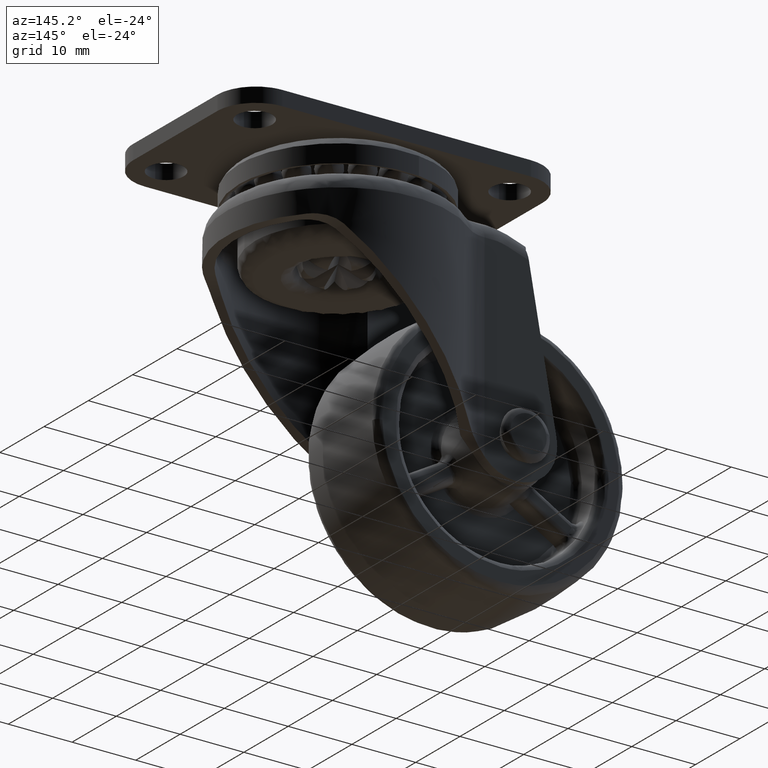
[diagram: clean part render]
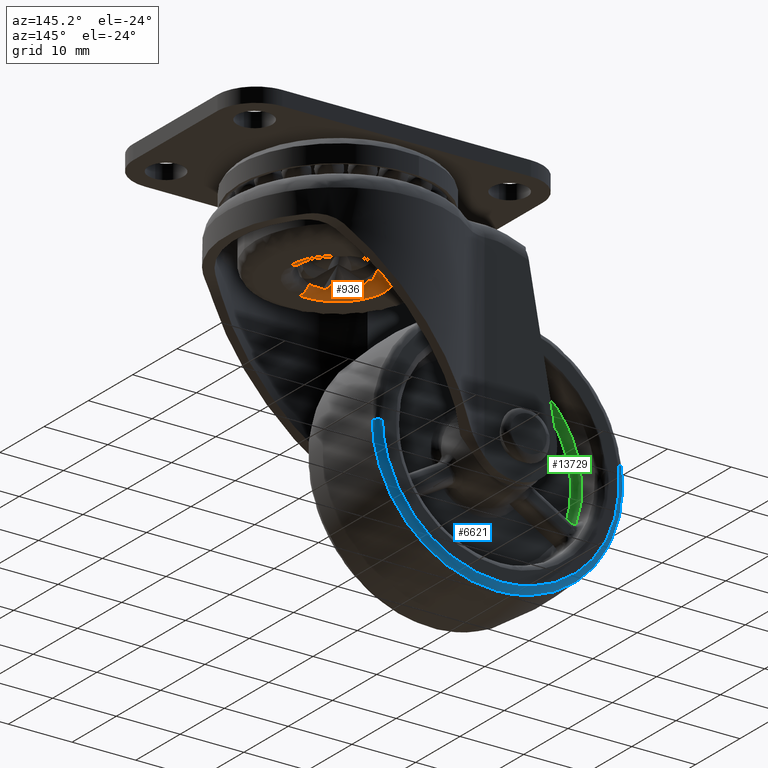
[diagram: same view with three faces highlighted in distinct colors, each labeled with its STEP entity id]
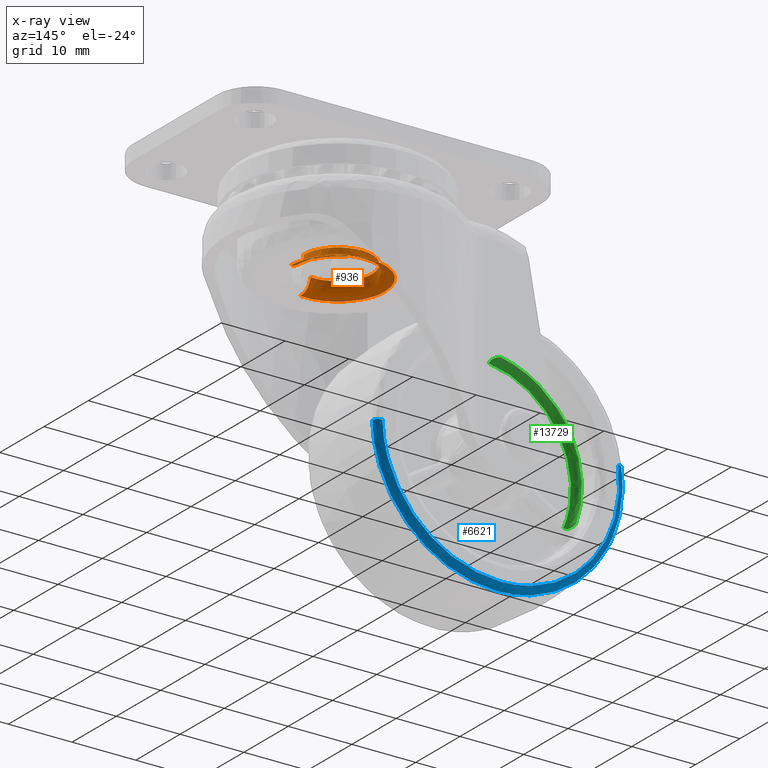
[diagram: x-ray of the same camera — body ghosted, the three highlighted faces saturated]
A machine part, auxiliary view with three faces highlighted in distinct colors.
The next image is the same camera in x-ray (body ghosted, the three faces saturated) — at least one of them is partly hidden behind the body in this view.
Their STEP definitions:

[orange] entity #936 — the highlighted face is a freeform B-spline surface patch.
#290=CARTESIAN_POINT('',(25.023475580085329,1.886830554548066,24.022790396477710));
#291=VERTEX_POINT('',#290);
#292=CARTESIAN_POINT('',(25.366137945048528,1.135119E-016,24.022790396422369));
#293=VERTEX_POINT('',#292);
#294=CARTESIAN_POINT('',(25.023475580085325,1.886830554548066,24.022790396477717));
#295=CARTESIAN_POINT('',(25.366137945048518,0.974530285478672,24.022790396450958));
#296=CARTESIAN_POINT('',(25.366137945048528,1.135119E-016,24.022790396422369));
#304=(BOUNDED_CURVE()B_SPLINE_CURVE(2,(#294,#295,#296),.UNSPECIFIED.,.F.,.U.)B_SPLINE_CURVE_WITH_KNOTS((3,3),(0.440284170898641,0.500000000000000),.UNSPECIFIED.)CURVE()GEOMETRIC_REPRESENTATION_ITEM()RATIONAL_B_SPLINE_CURVE((0.893499554635437,0.930038554401556,1.0))REPRESENTATION_ITEM(''));
#305=EDGE_CURVE('',#291,#293,#304,.T.);
#307=CARTESIAN_POINT('',(20.619596982410702,-5.330247276128903,24.022790396276591));
#308=VERTEX_POINT('',#307);
#322=CARTESIAN_POINT('',(14.633862054950979,0.0,24.022790396579751));
#323=VERTEX_POINT('',#322);
#324=CARTESIAN_POINT('',(20.619596982410698,-5.330247276128903,24.022790396276591));
#325=CARTESIAN_POINT('',(20.310837989644643,-5.366137945048771,24.022790396579754));
#326=CARTESIAN_POINT('',(19.999999999999751,-5.366137945048770,24.022790396579751));
#327=CARTESIAN_POINT('',(14.633862054950976,-5.366137945048770,24.022790396579747));
#328=CARTESIAN_POINT('',(14.633862054950979,0.0,24.022790396579751));
#336=(BOUNDED_CURVE()B_SPLINE_CURVE(2,(#324,#325,#326,#327,#328),.UNSPECIFIED.,.F.,.U.)B_SPLINE_CURVE_WITH_KNOTS((3,2,3),(0.729999999992186,0.750000000000000,1.0),.UNSPECIFIED.)CURVE()GEOMETRIC_REPRESENTATION_ITEM()RATIONAL_B_SPLINE_CURVE((0.956886118175279,0.976568542485769,1.0,0.707106781186547,1.0))REPRESENTATION_ITEM(''));
#337=EDGE_CURVE('',#308,#323,#336,.T.);
#339=CARTESIAN_POINT('',(19.672405115416019,5.356129016079318,24.022790396579751));
#340=VERTEX_POINT('',#339);
#341=CARTESIAN_POINT('',(14.633862054950979,0.0,24.022790396579751));
#342=CARTESIAN_POINT('',(14.633862054950988,5.047958520579077,24.022790396579758));
#343=CARTESIAN_POINT('',(19.672405115416019,5.356129016079319,24.022790396579751));
#351=(BOUNDED_CURVE()B_SPLINE_CURVE(2,(#341,#342,#343),.UNSPECIFIED.,.F.,.U.)B_SPLINE_CURVE_WITH_KNOTS((3,3),(0.0,0.239332962235788),.UNSPECIFIED.)CURVE()GEOMETRIC_REPRESENTATION_ITEM()RATIONAL_B_SPLINE_CURVE((1.0,0.719603993290407,0.976072041659955))REPRESENTATION_ITEM(''));
#352=EDGE_CURVE('',#323,#340,#351,.T.);
#430=CARTESIAN_POINT('',(19.672405115416012,5.356129016079318,24.022790396579751));
#431=CARTESIAN_POINT('',(19.836049657440896,5.366137945048769,24.022790396579754));
#432=CARTESIAN_POINT('',(19.999999999999751,5.366137945048770,24.022790396579751));
#433=CARTESIAN_POINT('',(23.716638632553721,5.366137945048770,24.022790396579754));
#434=CARTESIAN_POINT('',(25.023475580085329,1.886830554548065,24.022790396477710));
#442=(BOUNDED_CURVE()B_SPLINE_CURVE(2,(#430,#431,#432,#433,#434),.UNSPECIFIED.,.F.,.U.)B_SPLINE_CURVE_WITH_KNOTS((3,2,3),(0.239332962235788,0.250000000000000,0.440284170898641),.UNSPECIFIED.)CURVE()GEOMETRIC_REPRESENTATION_ITEM()RATIONAL_B_SPLINE_CURVE((0.976072041659955,0.987502787896141,1.0,0.777068226784991,0.893499554635438))REPRESENTATION_ITEM(''));
#443=EDGE_CURVE('',#340,#291,#442,.T.);
#833=CARTESIAN_POINT('',(20.866539692576890,-7.454644727187602,22.027605738241380));
#834=CARTESIAN_POINT('',(20.434723637817584,-7.504839708308071,22.027605738241398));
#835=CARTESIAN_POINT('',(19.999999999999748,-7.504839708308070,22.027605738241384));
#836=CARTESIAN_POINT('',(12.495160291691681,-7.504839708308071,22.027605738241391));
#837=CARTESIAN_POINT('',(12.495160291691684,-1.378571E-015,22.027605738241384));
#838=CARTESIAN_POINT('',(12.495160291691681,7.504839708308067,22.027605738241391));
#839=CARTESIAN_POINT('',(19.999999999999748,7.504839708308070,22.027605738241384));
#840=CARTESIAN_POINT('',(27.504839708307816,7.504839708308071,22.027605738241391));
#841=CARTESIAN_POINT('',(27.504839708307824,2.297619E-015,22.027605738241384));
#842=CARTESIAN_POINT('',(20.601644104712594,-5.175807976553631,21.868118267709576));
#843=CARTESIAN_POINT('',(20.301831429203595,-5.210658676107265,21.868118267709583));
#844=CARTESIAN_POINT('',(19.999999999999741,-5.210658676107263,21.868118267709583));
#845=CARTESIAN_POINT('',(14.789341323892486,-5.210658676107266,21.868118267709580));
#846=CARTESIAN_POINT('',(14.789341323892483,-9.571509E-016,21.868118267709583));
#847=CARTESIAN_POINT('',(14.789341323892486,5.210658676107263,21.868118267709580));
#848=CARTESIAN_POINT('',(19.999999999999741,5.210658676107263,21.868118267709583));
#849=CARTESIAN_POINT('',(25.210658676107009,5.210658676107266,21.868118267709580));
#850=CARTESIAN_POINT('',(25.210658676107020,1.595251E-015,21.868118267709583));
#851=CARTESIAN_POINT('',(20.620158394718374,-5.335082220482086,24.162239406196647));
#852=CARTESIAN_POINT('',(20.311119635585683,-5.371005374587149,24.162239406196640));
#853=CARTESIAN_POINT('',(19.999999999999751,-5.371005374587148,24.162239406196647));
#854=CARTESIAN_POINT('',(14.628994625412602,-5.371005374587150,24.162239406196655));
#855=CARTESIAN_POINT('',(14.628994625412599,-9.866051E-016,24.162239406196647));
#856=CARTESIAN_POINT('',(14.628994625412602,5.371005374587148,24.162239406196655));
#857=CARTESIAN_POINT('',(19.999999999999751,5.371005374587148,24.162239406196647));
#858=CARTESIAN_POINT('',(25.371005374586911,5.371005374587152,24.162239406196655));
#859=CARTESIAN_POINT('',(25.371005374586904,1.644342E-015,24.162239406196647));
#867=(BOUNDED_SURFACE()B_SPLINE_SURFACE(2,2,((#833,#842,#851),(#834,#843,#852),(#835,#844,#853),(#836,#845,#854),(#837,#846,#855),(#838,#847,#856),(#839,#848,#857),(#840,#849,#858),(#841,#850,#859)),.UNSPECIFIED.,.F.,.F.,.U.)B_SPLINE_SURFACE_WITH_KNOTS((3,2,2,2,3),(3,3),(0.0,0.994753096326167,13.429178658795550,25.863604221264939,38.298029783734322),(0.0,3.644742170341143),.UNSPECIFIED.)GEOMETRIC_REPRESENTATION_ITEM()RATIONAL_B_SPLINE_SURFACE(((0.870831767469275,0.569876264854730,0.866008099449110),(0.888744104281515,0.581598179441108,0.883821217136054),(0.910068310898686,0.595552837128091,0.905027305768378),(0.643515473979449,0.421119449688160,0.639950945067811),(0.910068310898686,0.595552837128091,0.905027305768378),(0.643515473979449,0.421119449688160,0.639950945067811),(0.910068310898686,0.595552837128091,0.905027305768378),(0.643515473979449,0.421119449688160,0.639950945067811),(0.910068310898686,0.595552837128091,0.905027305768378)))REPRESENTATION_ITEM('')SURFACE());
#868=CARTESIAN_POINT('',(20.850525440930241,-7.316870553685574,22.022790396579751));
#869=VERTEX_POINT('',#868);
#870=CARTESIAN_POINT('',(12.633862054950960,0.0,22.022790396579751));
#871=VERTEX_POINT('',#870);
#872=CARTESIAN_POINT('',(20.850525440930234,-7.316870553685575,22.022790396579754));
#873=CARTESIAN_POINT('',(20.426689647707807,-7.366137945048791,22.022790396579747));
#874=CARTESIAN_POINT('',(19.999999999999751,-7.366137945048791,22.022790396579751));
#875=CARTESIAN_POINT('',(12.633862054950962,-7.366137945048791,22.022790396579754));
#876=CARTESIAN_POINT('',(12.633862054950960,0.0,22.022790396579751));
#884=(BOUNDED_CURVE()B_SPLINE_CURVE(2,(#872,#873,#874,#875,#876),.UNSPECIFIED.,.F.,.U.)B_SPLINE_CURVE_WITH_KNOTS((3,2,3),(0.730000000000376,0.750000000000000,1.0),.UNSPECIFIED.)CURVE()GEOMETRIC_REPRESENTATION_ITEM()RATIONAL_B_SPLINE_CURVE((0.956886118191401,0.976568542495365,1.0,0.707106781186547,1.0))REPRESENTATION_ITEM(''));
#885=EDGE_CURVE('',#869,#871,#884,.T.);
#886=ORIENTED_EDGE('',*,*,#885,.T.);
#887=CARTESIAN_POINT('',(27.366137944170479,4.093661E-016,22.022790396579751));
#888=VERTEX_POINT('',#887);
#889=CARTESIAN_POINT('',(12.633862054950960,0.0,22.022790396579751));
#890=CARTESIAN_POINT('',(12.633862054950962,7.366137945048791,22.022790396579754));
#891=CARTESIAN_POINT('',(19.999999999999751,7.366137945048791,22.022790396579751));
#892=CARTESIAN_POINT('',(27.366137945048536,7.366137945048791,22.022790396579754));
#893=CARTESIAN_POINT('',(27.366137944170479,4.093661E-016,22.022790396579751));
#901=(BOUNDED_CURVE()B_SPLINE_CURVE(2,(#889,#890,#891,#892,#893),.UNSPECIFIED.,.F.,.U.)B_SPLINE_CURVE_WITH_KNOTS((3,2,3),(0.0,0.250000000000000,0.500000000000000),.UNSPECIFIED.)CURVE()GEOMETRIC_REPRESENTATION_ITEM()RATIONAL_B_SPLINE_CURVE((1.0,0.707106781186547,1.0,0.707106781186547,1.0))REPRESENTATION_ITEM(''));
#902=EDGE_CURVE('',#871,#888,#901,.T.);
#903=ORIENTED_EDGE('',*,*,#902,.T.);
#904=CARTESIAN_POINT('',(27.366137944170472,4.093661E-016,22.022790396579744));
#905=CARTESIAN_POINT('',(25.366137945678052,5.304852E-016,22.022790398335889));
#906=CARTESIAN_POINT('',(25.366137945048521,1.135119E-016,24.022790396422376));
#914=(BOUNDED_CURVE()B_SPLINE_CURVE(2,(#904,#905,#906),.UNSPECIFIED.,.F.,.U.)B_SPLINE_CURVE_WITH_KNOTS((3,3),(-1.726807298616677,-0.285995334364859),.UNSPECIFIED.)CURVE()GEOMETRIC_REPRESENTATION_ITEM()RATIONAL_B_SPLINE_CURVE((0.882788775895100,0.622603437956155,0.878205638940987))REPRESENTATION_ITEM(''));
#915=EDGE_CURVE('',#888,#293,#914,.T.);
#916=ORIENTED_EDGE('',*,*,#915,.T.);
#917=ORIENTED_EDGE('',*,*,#305,.F.);
#918=ORIENTED_EDGE('',*,*,#443,.F.);
#919=ORIENTED_EDGE('',*,*,#352,.F.);
#920=ORIENTED_EDGE('',*,*,#337,.F.);
#921=CARTESIAN_POINT('',(20.850525440930234,-7.316870553685575,22.022790396579751));
#922=CARTESIAN_POINT('',(20.619596982357589,-5.330247276745491,22.022790396637660));
#923=CARTESIAN_POINT('',(20.619596982410709,-5.330247276128903,24.022790396276598));
#931=(BOUNDED_CURVE()B_SPLINE_CURVE(2,(#921,#922,#923),.UNSPECIFIED.,.F.,.U.)B_SPLINE_CURVE_WITH_KNOTS((3,3),(-1.726807299484016,-0.285995334353078),.UNSPECIFIED.)CURVE()GEOMETRIC_REPRESENTATION_ITEM()RATIONAL_B_SPLINE_CURVE((0.844728325248293,0.595760586768756,0.840342784823389))REPRESENTATION_ITEM(''));
#932=EDGE_CURVE('',#869,#308,#931,.T.);
#933=ORIENTED_EDGE('',*,*,#932,.F.);
#934=EDGE_LOOP('',(#886,#903,#916,#917,#918,#919,#920,#933));
#935=FACE_OUTER_BOUND('',#934,.T.);
#936=ADVANCED_FACE('',(#935),#867,.T.);

[blue] entity #6621 — the highlighted face is a freeform B-spline surface patch.
#6416=CARTESIAN_POINT('',(18.578567727683190,7.999999999999970,-0.418232099378398));
#6417=VERTEX_POINT('',#6416);
#6435=CARTESIAN_POINT('',(-18.406016740991809,7.999999999999982,2.560594861546395));
#6436=VERTEX_POINT('',#6435);
#6450=CARTESIAN_POINT('',(-19.389481643099138,7.118649055468191,2.697411774477859));
#6451=VERTEX_POINT('',#6450);
#6452=CARTESIAN_POINT('',(-18.406016740991806,7.999999999999982,2.560594861546395));
#6453=CARTESIAN_POINT('',(-19.285171209657033,8.000000235201663,2.682900391615570));
#6454=CARTESIAN_POINT('',(-19.389481643099145,7.118649055468191,2.697411774477859));
#6462=(BOUNDED_CURVE()B_SPLINE_CURVE(2,(#6452,#6453,#6454),.UNSPECIFIED.,.F.,.U.)B_SPLINE_CURVE_WITH_KNOTS((3,3),(-1.707209732716261,-0.285579518921736),.UNSPECIFIED.)CURVE()GEOMETRIC_REPRESENTATION_ITEM()RATIONAL_B_SPLINE_CURVE((0.888990191686358,0.665708706420451,0.891266781684579))REPRESENTATION_ITEM(''));
#6463=EDGE_CURVE('',#6436,#6451,#6462,.T.);
#6480=CARTESIAN_POINT('',(19.571252960442209,7.118644011443535,-0.440578968768423));
#6481=VERTEX_POINT('',#6480);
#6497=CARTESIAN_POINT('',(18.578567727683190,7.999999999999970,-0.418232099378398));
#6498=CARTESIAN_POINT('',(19.465968576374564,8.000000302722485,-0.438208855546411));
#6499=CARTESIAN_POINT('',(19.571252960442212,7.118644011443535,-0.440578968768423));
#6507=(BOUNDED_CURVE()B_SPLINE_CURVE(2,(#6497,#6498,#6499),.UNSPECIFIED.,.F.,.U.)B_SPLINE_CURVE_WITH_KNOTS((3,3),(-1.707209814063338,-0.285574072680498),.UNSPECIFIED.)CURVE()GEOMETRIC_REPRESENTATION_ITEM()RATIONAL_B_SPLINE_CURVE((0.850662398083423,0.637006589073594,0.852842464712864))REPRESENTATION_ITEM(''));
#6508=EDGE_CURVE('',#6417,#6481,#6507,.T.);
#6513=CARTESIAN_POINT('',(-18.341132033231130,7.997851920142664,2.551568237568361));
#6514=CARTESIAN_POINT('',(-20.892700270799477,7.997851920142664,-15.789563795662758));
#6515=CARTESIAN_POINT('',(-2.551568237568362,7.997851920142664,-18.341132033231130));
#6516=CARTESIAN_POINT('',(15.789563795662758,7.997851920142664,-20.892700270799494));
#6517=CARTESIAN_POINT('',(18.341132033231130,7.997851920142664,-2.551568237568362));
#6518=CARTESIAN_POINT('',(18.488933738892079,7.997851920142664,-1.489142957949818));
#6519=CARTESIAN_POINT('',(18.513074777228642,7.997851920142665,-0.416757752327853));
#6520=CARTESIAN_POINT('',(-19.341412646758812,8.064153678646852,2.690724546868590));
#6521=CARTESIAN_POINT('',(-22.032137193627399,8.064153678646852,-16.650688099890221));
#6522=CARTESIAN_POINT('',(-2.690724546868590,8.064153678646852,-19.341412646758812));
#6523=CARTESIAN_POINT('',(16.650688099890221,8.064153678646852,-22.032137193627399));
#6524=CARTESIAN_POINT('',(19.341412646758812,8.064153678646852,-2.690724546868590));
#6525=CARTESIAN_POINT('',(19.497275097010181,8.064153678646854,-1.570357183380923));
#6526=CARTESIAN_POINT('',(19.522732728706131,8.064153678646854,-0.439486703814360));
#6527=CARTESIAN_POINT('',(-19.395059125371009,7.053516224315573,2.698187698577887));
#6528=CARTESIAN_POINT('',(-22.093246823948881,7.053516224315576,-16.696871426793120));
#6529=CARTESIAN_POINT('',(-2.698187698577888,7.053516224315573,-19.395059125371009));
#6530=CARTESIAN_POINT('',(16.696871426793120,7.053516224315576,-22.093246823948881));
#6531=CARTESIAN_POINT('',(19.395059125371009,7.053516224315573,-2.698187698577888));
#6532=CARTESIAN_POINT('',(19.551353884872821,7.053516224315573,-1.574712818338427));
#6533=CARTESIAN_POINT('',(19.576882127351915,7.053516224315574,-0.440705689960156));
#6541=(BOUNDED_SURFACE()B_SPLINE_SURFACE(2,2,((#6513,#6520,#6527),(#6514,#6521,#6528),(#6515,#6522,#6529),(#6516,#6523,#6530),(#6517,#6524,#6531),(#6518,#6525,#6532),(#6519,#6526,#6533)),.UNSPECIFIED.,.F.,.F.,.U.)B_SPLINE_SURFACE_WITH_KNOTS((3,2,2,3),(3,3),(0.0,32.444258097607978,64.888516195215956,67.484056843024604),(0.0,1.670947392178376),.UNSPECIFIED.)GEOMETRIC_REPRESENTATION_ITEM()RATIONAL_B_SPLINE_SURFACE(((0.912416213366537,0.642168130809258,0.914921926736441),(0.645175691736030,0.454081439957116,0.646947498651599),(0.912416213366537,0.642168130809258,0.914921926736441),(0.645175691736030,0.454081439957116,0.646947498651599),(0.912416213366537,0.642168130809258,0.914921926736441),(0.891036971636096,0.627121195541086,0.893483972489653),(0.873078408582526,0.614481769915822,0.875476090922352)))REPRESENTATION_ITEM('')SURFACE());
#6542=CARTESIAN_POINT('',(0.0,8.0,-18.583274650934250));
#6543=VERTEX_POINT('',#6542);
#6544=CARTESIAN_POINT('',(0.0,8.0,-18.583274650934250));
#6545=CARTESIAN_POINT('',(18.169644711128836,8.0,-18.583274650934250));
#6546=CARTESIAN_POINT('',(18.578567727683190,7.999999999999970,-0.418232099378398));
#6554=(BOUNDED_CURVE()B_SPLINE_CURVE(2,(#6544,#6545,#6546),.UNSPECIFIED.,.F.,.U.)B_SPLINE_CURVE_WITH_KNOTS((3,3),(0.0,0.246039451966748),.UNSPECIFIED.)CURVE()GEOMETRIC_REPRESENTATION_ITEM()RATIONAL_B_SPLINE_CURVE((1.0,0.711746851833445,0.990866876487602))REPRESENTATION_ITEM(''));
#6555=EDGE_CURVE('',#6543,#6417,#6554,.T.);
#6556=ORIENTED_EDGE('',*,*,#6555,.T.);
#6557=ORIENTED_EDGE('',*,*,#6508,.T.);
#6558=CARTESIAN_POINT('',(0.0,7.118643955602270,-19.576210925447150));
#6559=VERTEX_POINT('',#6558);
#6560=CARTESIAN_POINT('',(0.0,7.118643955602270,-19.576210925447150));
#6561=CARTESIAN_POINT('',(19.140480027959573,7.118643955602270,-19.576210925447153));
#6562=CARTESIAN_POINT('',(19.571252960442202,7.118644011443535,-0.440578968768423));
#6570=(BOUNDED_CURVE()B_SPLINE_CURVE(2,(#6560,#6561,#6562),.UNSPECIFIED.,.F.,.U.)B_SPLINE_CURVE_WITH_KNOTS((3,3),(0.0,0.246039451969112),.UNSPECIFIED.)CURVE()GEOMETRIC_REPRESENTATION_ITEM()RATIONAL_B_SPLINE_CURVE((1.0,0.711746851830676,0.990866876492965))REPRESENTATION_ITEM(''));
#6571=EDGE_CURVE('',#6559,#6481,#6570,.T.);
#6572=ORIENTED_EDGE('',*,*,#6571,.F.);
#6573=CARTESIAN_POINT('',(-19.445279401510842,7.118649067782592,2.260336098562421));
#6574=VERTEX_POINT('',#6573);
#6575=CARTESIAN_POINT('',(-19.445279401510842,7.118649067782592,2.260336098562421));
#6576=CARTESIAN_POINT('',(-19.576210334330465,7.118648935933976,1.133960129880808));
#6577=CARTESIAN_POINT('',(-19.576210351904042,7.118648787871385,-0.000000066669152));
#6578=CARTESIAN_POINT('',(-19.576210655286964,7.118646231781224,-19.576210956850808));
#6579=CARTESIAN_POINT('',(0.0,7.118643955602270,-19.576210925447150));
#6587=(BOUNDED_CURVE()B_SPLINE_CURVE(2,(#6575,#6576,#6577,#6578,#6579),.UNSPECIFIED.,.F.,.U.)B_SPLINE_CURVE_WITH_KNOTS((3,2,3),(0.730000138650092,0.750000000000000,1.0),.UNSPECIFIED.)CURVE()GEOMETRIC_REPRESENTATION_ITEM()RATIONAL_B_SPLINE_CURVE((0.956886391087834,0.976568704933611,1.0,0.707106781186548,1.0))REPRESENTATION_ITEM(''));
#6588=EDGE_CURVE('',#6574,#6559,#6587,.T.);
#6589=ORIENTED_EDGE('',*,*,#6588,.F.);
#6590=CARTESIAN_POINT('',(-19.389481643099135,7.118649055468191,2.697411774477859));
#6591=CARTESIAN_POINT('',(-19.419839882434577,7.118649034106405,2.479187902296852));
#6592=CARTESIAN_POINT('',(-19.445279401510842,7.118649067782592,2.260336098562421));
#6600=(BOUNDED_CURVE()B_SPLINE_CURVE(2,(#6590,#6591,#6592),.UNSPECIFIED.,.F.,.U.)B_SPLINE_CURVE_WITH_KNOTS((3,3),(0.726207391011957,0.730000138650092),.UNSPECIFIED.)CURVE()GEOMETRIC_REPRESENTATION_ITEM()RATIONAL_B_SPLINE_CURVE((0.949556158395088,0.953153862744484,0.956886391087834))REPRESENTATION_ITEM(''));
#6601=EDGE_CURVE('',#6451,#6574,#6600,.T.);
#6602=ORIENTED_EDGE('',*,*,#6601,.F.);
#6603=ORIENTED_EDGE('',*,*,#6463,.F.);
#6604=CARTESIAN_POINT('',(-18.406016740991809,7.999999999999982,2.560594861546395));
#6605=CARTESIAN_POINT('',(-18.583274650934239,8.000000000000002,1.286432815622572));
#6606=CARTESIAN_POINT('',(-18.583274650934250,8.0,1.181745E-015));
#6607=CARTESIAN_POINT('',(-18.583274650934250,8.0,-18.583274650934250));
#6608=CARTESIAN_POINT('',(0.0,8.0,-18.583274650934250));
#6616=(BOUNDED_CURVE()B_SPLINE_CURVE(2,(#6604,#6605,#6606,#6607,#6608),.UNSPECIFIED.,.F.,.U.)B_SPLINE_CURVE_WITH_KNOTS((3,2,3),(0.726207390168359,0.750000000000000,1.0),.UNSPECIFIED.)CURVE()GEOMETRIC_REPRESENTATION_ITEM()RATIONAL_B_SPLINE_CURVE((0.949556156794656,0.972125223689752,1.0,0.707106781186548,1.0))REPRESENTATION_ITEM(''));
#6617=EDGE_CURVE('',#6436,#6543,#6616,.T.);
#6618=ORIENTED_EDGE('',*,*,#6617,.T.);
#6619=EDGE_LOOP('',(#6556,#6557,#6572,#6589,#6602,#6603,#6618));
#6620=FACE_OUTER_BOUND('',#6619,.T.);
#6621=ADVANCED_FACE('',(#6620),#6541,.T.);

[green] entity #13729 — the highlighted face is a freeform B-spline surface patch.
#4444=CARTESIAN_POINT('',(-8.790642638777356,4.0,12.766150633503800));
#4445=VERTEX_POINT('',#4444);
#4451=CARTESIAN_POINT('',(-14.595490907186059,4.0,-5.217436648225730));
#4452=VERTEX_POINT('',#4451);
#4453=CARTESIAN_POINT('',(-8.790642638777356,4.000000000000001,12.766150633503800));
#4454=CARTESIAN_POINT('',(-11.673364908420572,4.0,10.781137147073109));
#4455=CARTESIAN_POINT('',(-13.423391836410470,4.0,7.750003329430818));
#4456=CARTESIAN_POINT('',(-17.010176645808347,4.000000000000000,1.537513362285390));
#4457=CARTESIAN_POINT('',(-14.595490907186070,4.0,-5.217436648225724));
#4465=(BOUNDED_CURVE()B_SPLINE_CURVE(2,(#4453,#4454,#4455,#4456,#4457),.UNSPECIFIED.,.F.,.U.)B_SPLINE_CURVE_WITH_KNOTS((3,2,3),(0.243917534163236,0.500000000000000,1.0),.UNSPECIFIED.)CURVE()GEOMETRIC_REPRESENTATION_ITEM()RATIONAL_B_SPLINE_CURVE((0.953787154614197,0.952634764917232,1.0,0.907519566152257,1.0))REPRESENTATION_ITEM(''));
#4466=EDGE_CURVE('',#4445,#4452,#4465,.T.);
#4887=CARTESIAN_POINT('',(-2.779305209220720,4.0,15.248785609155849));
#4888=VERTEX_POINT('',#4887);
#4894=CARTESIAN_POINT('',(-2.779305209220715,4.0,15.248785609155849));
#4895=CARTESIAN_POINT('',(-6.051331045413622,4.0,14.652412974355656));
#4896=CARTESIAN_POINT('',(-8.790642638777356,4.000000000000001,12.766150633503800));
#4904=(BOUNDED_CURVE()B_SPLINE_CURVE(2,(#4894,#4895,#4896),.UNSPECIFIED.,.F.,.U.)B_SPLINE_CURVE_WITH_KNOTS((3,3),(0.0,0.243917534163236),.UNSPECIFIED.)CURVE()GEOMETRIC_REPRESENTATION_ITEM()RATIONAL_B_SPLINE_CURVE((1.0,0.954884801235024,0.953787154614197))REPRESENTATION_ITEM(''));
#4905=EDGE_CURVE('',#4888,#4445,#4904,.T.);
#11895=CARTESIAN_POINT('',(-1.610604540377745,3.0,14.410272482313260));
#11896=VERTEX_POINT('',#11895);
#11897=CARTESIAN_POINT('',(-2.779305209220720,4.0,15.248785609155849));
#11898=CARTESIAN_POINT('',(-2.765087729014916,3.986022246615115,15.251376944479910));
#11899=CARTESIAN_POINT('',(-2.750624365600138,3.971858767604960,15.253690180370970));
#11900=CARTESIAN_POINT('',(-2.721824256891283,3.943765305904131,15.257650514483609));
#11901=CARTESIAN_POINT('',(-2.707398527616583,3.929747738104761,15.259314449459501));
#11902=CARTESIAN_POINT('',(-2.664046500777174,3.887780200308535,15.263361657777640));
#11903=CARTESIAN_POINT('',(-2.635045501422919,3.859915240021566,15.264802027999471));
#11904=CARTESIAN_POINT('',(-2.547755916320406,3.776647774976651,15.265321739963960));
#11905=CARTESIAN_POINT('',(-2.489183098195149,3.721569983249679,15.260632732187000));
#11906=CARTESIAN_POINT('',(-2.400763053800550,3.639599301021373,15.245401581743760));
#11907=CARTESIAN_POINT('',(-2.371286389370665,3.612469484030328,15.238956392618800));
#11908=CARTESIAN_POINT('',(-2.312917065734147,3.559136157181703,15.223376303215881));
#11909=CARTESIAN_POINT('',(-2.283940653513509,3.532854804096071,15.214228473172810));
#11910=CARTESIAN_POINT('',(-2.197673144882312,3.455203881939721,15.182539106888241));
#11911=CARTESIAN_POINT('',(-2.141034951329183,3.405010099382706,15.155811479994391));
#11912=CARTESIAN_POINT('',(-2.057659198993218,3.332476693714809,15.105779638138360));
#11913=CARTESIAN_POINT('',(-2.030053522483648,3.308697010649211,15.087355323509120));
#11914=CARTESIAN_POINT('',(-1.976503577309562,3.263083344663810,15.047534695150960));
#11915=CARTESIAN_POINT('',(-1.950439052577062,3.241143091522190,15.026078868100640));
#11916=CARTESIAN_POINT('',(-1.899849657074277,3.199143290166572,14.979815430698560));
#11917=CARTESIAN_POINT('',(-1.875323762799646,3.179082375172274,14.955010152994140));
#11918=CARTESIAN_POINT('',(-1.828001805700262,3.141084896063824,14.901623633911530));
#11919=CARTESIAN_POINT('',(-1.805075879217627,3.123051240071570,14.872839397794490));
#11920=CARTESIAN_POINT('',(-1.762256801834321,3.090257111065641,14.812321372895020));
#11921=CARTESIAN_POINT('',(-1.742276013829255,3.075420894646888,14.780529275930270));
#11922=CARTESIAN_POINT('',(-1.714648085932288,3.055751265404300,14.730315951962140));
#11923=CARTESIAN_POINT('',(-1.705830459202243,3.049626862582574,14.713156041880950));
#11924=CARTESIAN_POINT('',(-1.689029020550362,3.038303298412985,14.677935267873631));
#11925=CARTESIAN_POINT('',(-1.681018159406891,3.033088369842858,14.659799854772510));
#11926=CARTESIAN_POINT('',(-1.643783799484816,3.009869242928449,14.568175831132070));
#11927=CARTESIAN_POINT('',(-1.622494694778033,3.000000000000001,14.491247487133251));
#11928=CARTESIAN_POINT('',(-1.610604540377740,3.0,14.410272482313260));
#11929=B_SPLINE_CURVE_WITH_KNOTS('',3,(#11897,#11898,#11899,#11900,#11901,#11902,#11903,#11904,#11905,#11906,#11907,#11908,#11909,#11910,#11911,#11912,#11913,#11914,#11915,#11916,#11917,#11918,#11919,#11920,#11921,#11922,#11923,#11924,#11925,#11926,#11927,#11928),.UNSPECIFIED.,.F.,.U.,(4,2,2,2,2,2,2,2,2,2,2,2,2,2,2,4),(0.0,0.031250000000000,0.062499999999999,0.124999999999999,0.249999999999998,0.312499999999997,0.374999999999997,0.499999999999997,0.562499999999997,0.624999999999998,0.687499999999998,0.749999999999998,0.812499999999999,0.843749999999999,0.874999999999999,1.0),.UNSPECIFIED.);
#11930=EDGE_CURVE('',#4888,#11896,#11929,.T.);
#12807=CARTESIAN_POINT('',(-13.284967197612740,3.0,-5.810305203545990));
#12808=VERTEX_POINT('',#12807);
#12829=CARTESIAN_POINT('',(-13.284967197612740,3.0,-5.810305203545990));
#12830=CARTESIAN_POINT('',(-13.361038701034889,3.0,-5.840495492454083));
#12831=CARTESIAN_POINT('',(-13.438305163497120,3.009869242928450,-5.860522720624492));
#12832=CARTESIAN_POINT('',(-13.536271082257370,3.033088369842858,-5.874088782261177));
#12833=CARTESIAN_POINT('',(-13.555982242339470,3.038303298412986,-5.876218869777309));
#12834=CARTESIAN_POINT('',(-13.594885048214611,3.049626862582575,-5.879278764790036));
#12835=CARTESIAN_POINT('',(-13.614154780104711,3.055751265404300,-5.880222421522298));
#12836=CARTESIAN_POINT('',(-13.671454758803490,3.075420894646889,-5.881402567669215));
#12837=CARTESIAN_POINT('',(-13.708977915718689,3.090257111065642,-5.879994727537683));
#12838=CARTESIAN_POINT('',(-13.782797597975311,3.123051240071571,-5.873171294587584));
#12839=CARTESIAN_POINT('',(-13.819188438212850,3.141084896063829,-5.867708959854662));
#12840=CARTESIAN_POINT('',(-13.889083491419550,3.179082375172278,-5.853420167718680));
#12841=CARTESIAN_POINT('',(-13.922828434812899,3.199143290166576,-5.844582742338877));
#12842=CARTESIAN_POINT('',(-13.988188434362270,3.241143091522192,-5.823902726949662));
#12843=CARTESIAN_POINT('',(-14.019801982137620,3.263083344663814,-5.812058084236567));
#12844=CARTESIAN_POINT('',(-14.081062617349000,3.308697010649216,-5.785592755134433));
#12845=CARTESIAN_POINT('',(-14.110821372830330,3.332476693714811,-5.770897680540862));
#12846=CARTESIAN_POINT('',(-14.195838071634681,3.405010099382712,-5.723708039712561));
#12847=CARTESIAN_POINT('',(-14.247303954581501,3.455203881939726,-5.688021713187642));
#12848=CARTESIAN_POINT('',(-14.317881475928470,3.532854804096080,-5.629156507323149));
#12849=CARTESIAN_POINT('',(-14.340291925066159,3.559136157181714,-5.608636102134065));
#12850=CARTESIAN_POINT('',(-14.382969318889231,3.612469484030340,-5.565876808593862));
#12851=CARTESIAN_POINT('',(-14.403289337553900,3.639599301021395,-5.543571852861202));
#12852=CARTESIAN_POINT('',(-14.460689888756111,3.721569983249705,-5.474613394959004));
#12853=CARTESIAN_POINT('',(-14.494037073672031,3.776647774976672,-5.426232333837422));
#12854=CARTESIAN_POINT('',(-14.537231744830519,3.859915240021608,-5.350377458243284));
#12855=CARTESIAN_POINT('',(-14.550484834488470,3.887780200308593,-5.324541664382081));
#12856=CARTESIAN_POINT('',(-14.568655843062210,3.929747738104865,-5.284974094660591));
#12857=CARTESIAN_POINT('',(-14.574427691130129,3.943765305904253,-5.271649076289447));
#12858=CARTESIAN_POINT('',(-14.585397982180551,3.971858767605201,-5.244727278017643));
#12859=CARTESIAN_POINT('',(-14.590626336054269,3.986022246614716,-5.231045017336566));
#12860=CARTESIAN_POINT('',(-14.595490907186059,4.0,-5.217436648225730));
#12861=B_SPLINE_CURVE_WITH_KNOTS('',3,(#12829,#12830,#12831,#12832,#12833,#12834,#12835,#12836,#12837,#12838,#12839,#12840,#12841,#12842,#12843,#12844,#12845,#12846,#12847,#12848,#12849,#12850,#12851,#12852,#12853,#12854,#12855,#12856,#12857,#12858,#12859,#12860),.UNSPECIFIED.,.F.,.U.,(4,2,2,2,2,2,2,2,2,2,2,2,2,2,2,4),(0.0,0.124999999999995,0.156249999999996,0.187499999999996,0.249999999999996,0.312499999999996,0.374999999999997,0.437499999999997,0.499999999999997,0.624999999999999,0.687500000000000,0.750000000000000,0.875000000000001,0.937500000000001,0.968750000000001,1.0),.UNSPECIFIED.);
#12862=EDGE_CURVE('',#12808,#4452,#12861,.T.);
#13684=CARTESIAN_POINT('',(-1.610604540377739,3.0,14.410272482313260));
#13685=CARTESIAN_POINT('',(-8.893329210588099,3.0,13.596298323631782));
#13686=CARTESIAN_POINT('',(-12.557366556642050,3.0,7.250003114628830));
#13687=CARTESIAN_POINT('',(-16.221403902696000,3.0,0.903707905625880));
#13688=CARTESIAN_POINT('',(-13.284967197612740,3.0,-5.810305203545980));
#13696=(BOUNDED_CURVE()B_SPLINE_CURVE(2,(#13684,#13685,#13686,#13687,#13688),.UNSPECIFIED.,.F.,.U.)B_SPLINE_CURVE_WITH_KNOTS((3,2,3),(0.0,0.500000000000000,1.0),.UNSPECIFIED.)CURVE()GEOMETRIC_REPRESENTATION_ITEM()RATIONAL_B_SPLINE_CURVE((1.0,0.892496761013899,1.0,0.892496761013899,1.0))REPRESENTATION_ITEM(''));
#13697=EDGE_CURVE('',#11896,#12808,#13696,.T.);
#13705=CARTESIAN_POINT('',(-0.501179514986375,4.069724252013711,15.489460300686165));
#13706=CARTESIAN_POINT('',(-25.421833831498489,4.069724252013711,14.683123527096999));
#13707=CARTESIAN_POINT('',(-13.667365745237825,4.069724252013711,-7.306002662104229));
#13708=CARTESIAN_POINT('',(-0.503772249011522,2.922664437351518,15.569591370596022));
#13709=CARTESIAN_POINT('',(-25.553347693469401,2.922664437351518,14.759083203871072));
#13710=CARTESIAN_POINT('',(-13.738070638678618,2.922664437351518,-7.343798543866021));
#13711=CARTESIAN_POINT('',(-0.466676237579461,3.002407642008213,14.423101581590290));
#13712=CARTESIAN_POINT('',(-23.671689305131490,3.002407642008213,13.672276377310384));
#13713=CARTESIAN_POINT('',(-12.726447575941711,3.002407642008212,-6.803027123303349));
#13721=(BOUNDED_SURFACE()B_SPLINE_SURFACE(2,2,((#13705,#13708,#13711),(#13706,#13709,#13712),(#13707,#13710,#13713)),.UNSPECIFIED.,.F.,.F.,.U.)B_SPLINE_SURFACE_WITH_KNOTS((3,3),(3,3),(0.0,34.458612394427377),(0.0,1.822370277406368),.UNSPECIFIED.)GEOMETRIC_REPRESENTATION_ITEM()RATIONAL_B_SPLINE_SURFACE(((0.834937248447062,0.549430294802983,0.839587787613317),(0.441741096632669,0.290687643174262,0.444201562104841),(0.838674393150317,0.551889522151924,0.843345747938160)))REPRESENTATION_ITEM('')SURFACE());
#13722=ORIENTED_EDGE('',*,*,#13697,.T.);
#13723=ORIENTED_EDGE('',*,*,#12862,.T.);
#13724=ORIENTED_EDGE('',*,*,#4466,.F.);
#13725=ORIENTED_EDGE('',*,*,#4905,.F.);
#13726=ORIENTED_EDGE('',*,*,#11930,.T.);
#13727=EDGE_LOOP('',(#13722,#13723,#13724,#13725,#13726));
#13728=FACE_OUTER_BOUND('',#13727,.T.);
#13729=ADVANCED_FACE('',(#13728),#13721,.F.);